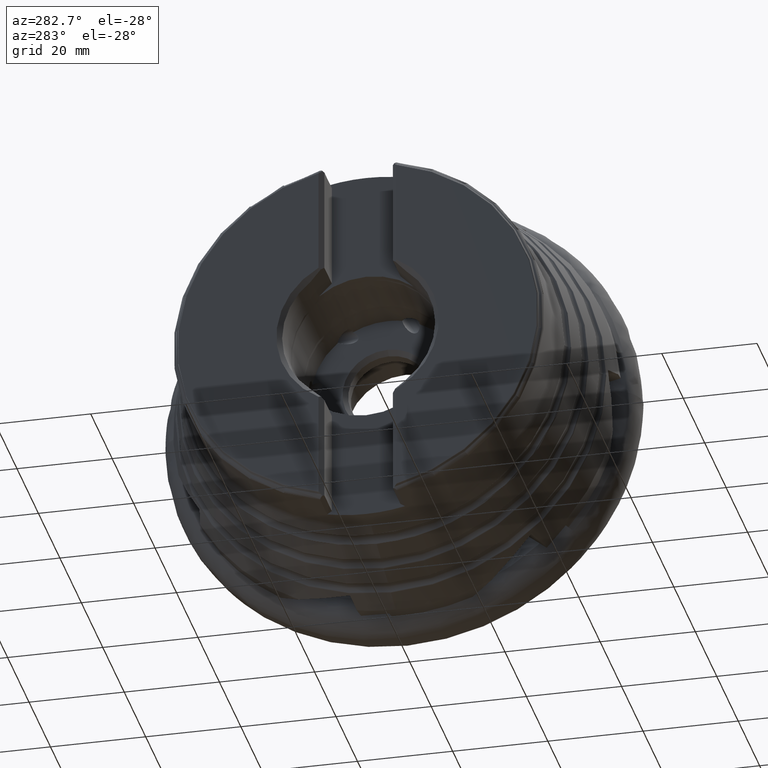
[diagram: clean part render]
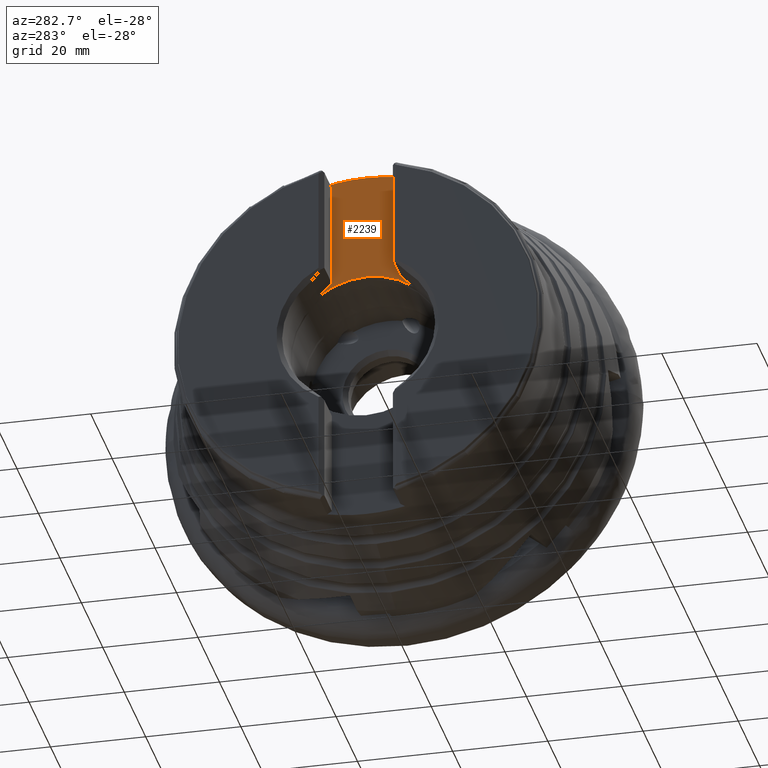
[diagram: same view with one face highlighted and labeled with its STEP entity id]
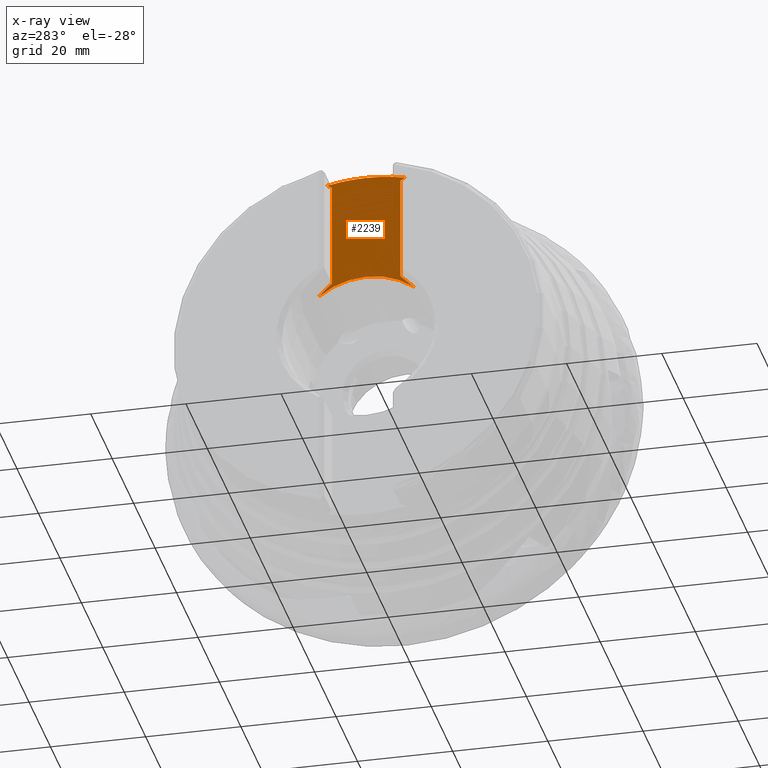
[diagram: x-ray of the same camera — body ghosted, the highlighted face saturated]
A machine part, auxiliary view. The second image highlights one B-rep face of the part: STEP entity #2239.
The next image is the same camera in x-ray: the body ghosted, the highlighted face saturated — about 0% of this face is hidden behind the body in this view.
In plain terms, the highlighted planar face has unit normal (1, 0, 0).
Its self-contained STEP definition (entity closure, byte-faithful):
#86 = CARTESIAN_POINT ( 'NONE',  ( -40.69999999999999600, 4.776122516674677900E-015, 39.00000000000000000 ) ) ;
#131 = EDGE_CURVE ( 'NONE', #4269, #9652, #9171, .T. ) ;
#215 = VERTEX_POINT ( 'NONE', #86 ) ;
#241 = CARTESIAN_POINT ( 'NONE',  ( -40.69999999999999600, -7.200000000000002800, 37.47303783587904700 ) ) ;
#691 = CARTESIAN_POINT ( 'NONE',  ( -40.69999999999999600, -7.200000000000002800, 15.37239106759899500 ) ) ;
#1087 = VECTOR ( 'NONE', #5617, 1000.000000000000000 ) ;
#1151 = DIRECTION ( 'NONE',  ( 0.0000000000000000000, 0.7071067811865465700, -0.7071067811865483500 ) ) ;
#1153 = EDGE_CURVE ( 'NONE', #4256, #3231, #7164, .T. ) ;
#1174 = AXIS2_PLACEMENT_3D ( 'NONE', #8085, #2985, #3827 ) ;
#1268 = PLANE ( 'NONE',  #6718 ) ;
#1291 = ORIENTED_EDGE ( 'NONE', *, *, #10411, .F. ) ;
#1319 = CIRCLE ( 'NONE', #10485, 16.07499999999999600 ) ;
#1336 = ORIENTED_EDGE ( 'NONE', *, *, #7926, .T. ) ;
#1387 = CARTESIAN_POINT ( 'NONE',  ( -40.69999999999999600, -8.168213455381957600, 38.13502706105394700 ) ) ;
#1620 = LINE ( 'NONE', #2784, #8398 ) ;
#1760 = CARTESIAN_POINT ( 'NONE',  ( -40.69999999999999600, 42.38619553379949400, -19.81380446620058300 ) ) ;
#1867 = EDGE_CURVE ( 'NONE', #2410, #215, #7294, .T. ) ;
#2025 = CARTESIAN_POINT ( 'NONE',  ( -40.69999999999999600, -7.200000000000002800, -54.99999999999999300 ) ) ;
#2110 = ORIENTED_EDGE ( 'NONE', *, *, #4944, .T. ) ;
#2239 = ADVANCED_FACE ( 'NONE', ( #8883 ), #1268, .F. ) ;
#2359 = EDGE_CURVE ( 'NONE', #3231, #10046, #1319, .T. ) ;
#2410 = VERTEX_POINT ( 'NONE', #1387 ) ;
#2417 = LINE ( 'NONE', #10810, #7478 ) ;
#2443 = CARTESIAN_POINT ( 'NONE',  ( -40.69999999999999600, 0.0000000000000000000, 0.0000000000000000000 ) ) ;
#2630 = ORIENTED_EDGE ( 'NONE', *, *, #2359, .F. ) ;
#2713 = DIRECTION ( 'NONE',  ( -0.0000000000000000000, -0.0000000000000000000, 1.000000000000000000 ) ) ;
#2784 = CARTESIAN_POINT ( 'NONE',  ( -40.69999999999999600, 7.199999999999993100, -54.99999999999999300 ) ) ;
#2870 = ORIENTED_EDGE ( 'NONE', *, *, #1867, .T. ) ;
#2877 = DIRECTION ( 'NONE',  ( 1.000000000000000000, 0.0000000000000000000, 0.0000000000000000000 ) ) ;
#2985 = DIRECTION ( 'NONE',  ( -1.000000000000000000, -0.0000000000000000000, -0.0000000000000000000 ) ) ;
#3082 = DIRECTION ( 'NONE',  ( -1.000000000000000000, -0.0000000000000000000, -0.0000000000000000000 ) ) ;
#3231 = VERTEX_POINT ( 'NONE', #8272 ) ;
#3287 = CARTESIAN_POINT ( 'NONE',  ( -40.69999999999999600, 8.168213455381986100, 38.13502706105394700 ) ) ;
#3327 = LINE ( 'NONE', #5895, #6660 ) ;
#3330 = DIRECTION ( 'NONE',  ( -0.0000000000000000000, 0.7071067811865470200, 0.7071067811865481300 ) ) ;
#3423 = EDGE_CURVE ( 'NONE', #10313, #3479, #3327, .T. ) ;
#3437 = DIRECTION ( 'NONE',  ( -1.000000000000000000, -0.0000000000000000000, -0.0000000000000000000 ) ) ;
#3479 = VERTEX_POINT ( 'NONE', #4433 ) ;
#3660 = ORIENTED_EDGE ( 'NONE', *, *, #131, .T. ) ;
#3827 = DIRECTION ( 'NONE',  ( 0.0000000000000000000, 1.776356839400250500E-015, -1.000000000000000000 ) ) ;
#4256 = VERTEX_POINT ( 'NONE', #9088 ) ;
#4269 = VERTEX_POINT ( 'NONE', #691 ) ;
#4396 = DIRECTION ( 'NONE',  ( 0.0000000000000000000, -0.8254950044723062800, -0.5644094237264887200 ) ) ;
#4433 = CARTESIAN_POINT ( 'NONE',  ( -40.69999999999999600, 7.199999999999993100, 37.47303783587903300 ) ) ;
#4944 = EDGE_CURVE ( 'NONE', #8889, #10046, #9277, .T. ) ;
#5196 = DIRECTION ( 'NONE',  ( -0.0000000000000000000, -0.0000000000000000000, 1.000000000000000000 ) ) ;
#5336 = ORIENTED_EDGE ( 'NONE', *, *, #9246, .T. ) ;
#5506 = AXIS2_PLACEMENT_3D ( 'NONE', #6857, #3437, #8559 ) ;
#5617 = DIRECTION ( 'NONE',  ( -0.0000000000000000000, -0.8254950044723021700, 0.5644094237264946100 ) ) ;
#5895 = CARTESIAN_POINT ( 'NONE',  ( -40.69999999999999600, -35.88477514317782600, 8.015012071699926500 ) ) ;
#6017 = ORIENTED_EDGE ( 'NONE', *, *, #10795, .T. ) ;
#6340 = CARTESIAN_POINT ( 'NONE',  ( -40.69999999999999600, 7.199999999999993100, -54.99999999999999300 ) ) ;
#6660 = VECTOR ( 'NONE', #4396, 1000.000000000000100 ) ;
#6718 = AXIS2_PLACEMENT_3D ( 'NONE', #6340, #2877, #10464 ) ;
#6857 = CARTESIAN_POINT ( 'NONE',  ( -40.69999999999999600, 0.0000000000000000000, 0.0000000000000000000 ) ) ;
#7164 = CIRCLE ( 'NONE', #1174, 16.07499999999999600 ) ;
#7294 = CIRCLE ( 'NONE', #8225, 39.00000000000000000 ) ;
#7478 = VECTOR ( 'NONE', #3330, 1000.000000000000000 ) ;
#7556 = ORIENTED_EDGE ( 'NONE', *, *, #1153, .F. ) ;
#7926 = EDGE_CURVE ( 'NONE', #9652, #2410, #9966, .T. ) ;
#8073 = CARTESIAN_POINT ( 'NONE',  ( -40.69999999999999600, 7.199999999999993100, 15.37239106759902200 ) ) ;
#8085 = CARTESIAN_POINT ( 'NONE',  ( -40.69999999999999600, 0.0000000000000000000, 0.0000000000000000000 ) ) ;
#8187 = CARTESIAN_POINT ( 'NONE',  ( -40.69999999999999600, 45.69753997786372000, 1.305804971107639400 ) ) ;
#8225 = AXIS2_PLACEMENT_3D ( 'NONE', #9093, #10791, #10858 ) ;
#8272 = CARTESIAN_POINT ( 'NONE',  ( -40.69999999999999600, 1.968619729629369600E-015, 16.07499999999999600 ) ) ;
#8326 = CIRCLE ( 'NONE', #5506, 39.00000000000000000 ) ;
#8398 = VECTOR ( 'NONE', #2713, 1000.000000000000000 ) ;
#8559 = DIRECTION ( 'NONE',  ( 0.0000000000000000000, 0.0000000000000000000, -1.000000000000000000 ) ) ;
#8761 = EDGE_LOOP ( 'NONE', ( #2870, #6017, #10254, #1291, #2110, #2630, #7556, #5336, #3660, #1336 ) ) ;
#8883 = FACE_OUTER_BOUND ( 'NONE', #8761, .T. ) ;
#8889 = VERTEX_POINT ( 'NONE', #8073 ) ;
#9088 = CARTESIAN_POINT ( 'NONE',  ( -40.69999999999999600, -9.935416916540496900, 12.63697415105850500 ) ) ;
#9093 = CARTESIAN_POINT ( 'NONE',  ( -40.69999999999999600, 0.0000000000000000000, 0.0000000000000000000 ) ) ;
#9171 = LINE ( 'NONE', #2025, #10331 ) ;
#9246 = EDGE_CURVE ( 'NONE', #4256, #4269, #2417, .T. ) ;
#9277 = LINE ( 'NONE', #1760, #9395 ) ;
#9395 = VECTOR ( 'NONE', #1151, 1000.000000000000100 ) ;
#9652 = VERTEX_POINT ( 'NONE', #241 ) ;
#9966 = LINE ( 'NONE', #8187, #1087 ) ;
#10046 = VERTEX_POINT ( 'NONE', #10529 ) ;
#10254 = ORIENTED_EDGE ( 'NONE', *, *, #3423, .T. ) ;
#10313 = VERTEX_POINT ( 'NONE', #3287 ) ;
#10331 = VECTOR ( 'NONE', #5196, 1000.000000000000000 ) ;
#10411 = EDGE_CURVE ( 'NONE', #8889, #3479, #1620, .T. ) ;
#10464 = DIRECTION ( 'NONE',  ( 0.0000000000000000000, 0.0000000000000000000, -1.000000000000000000 ) ) ;
#10485 = AXIS2_PLACEMENT_3D ( 'NONE', #2443, #3082, #10929 ) ;
#10529 = CARTESIAN_POINT ( 'NONE',  ( -40.69999999999999600, 9.935416916540509300, 12.63697415105849400 ) ) ;
#10791 = DIRECTION ( 'NONE',  ( -1.000000000000000000, -0.0000000000000000000, -0.0000000000000000000 ) ) ;
#10795 = EDGE_CURVE ( 'NONE', #215, #10313, #8326, .T. ) ;
#10810 = CARTESIAN_POINT ( 'NONE',  ( -40.69999999999999600, -35.18619553379951300, -12.61380446620055700 ) ) ;
#10858 = DIRECTION ( 'NONE',  ( 0.0000000000000000000, 7.105427357601001900E-015, -1.000000000000000000 ) ) ;
#10929 = DIRECTION ( 'NONE',  ( 0.0000000000000000000, 0.0000000000000000000, -1.000000000000000000 ) ) ;